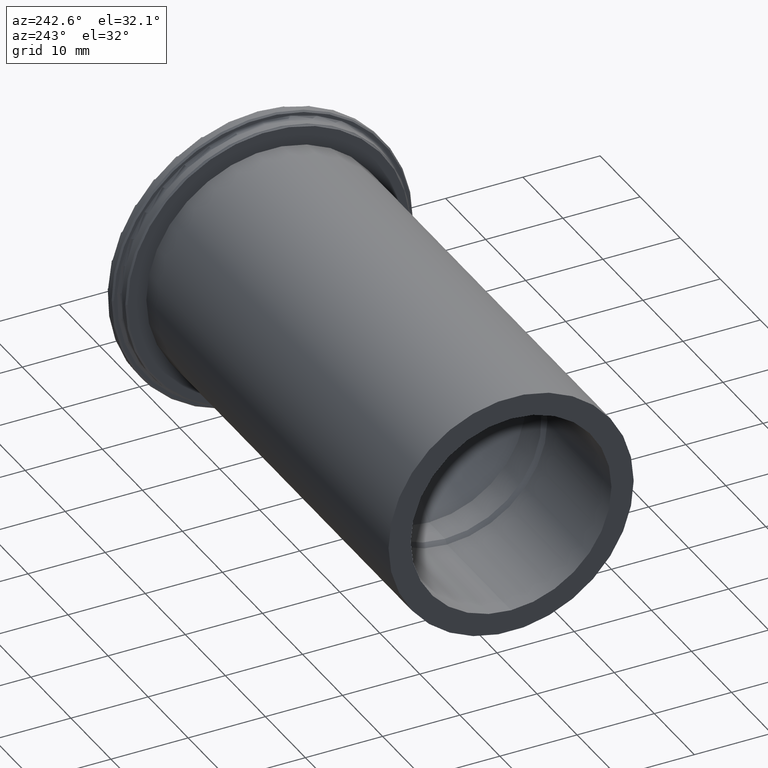
[diagram: clean part render]
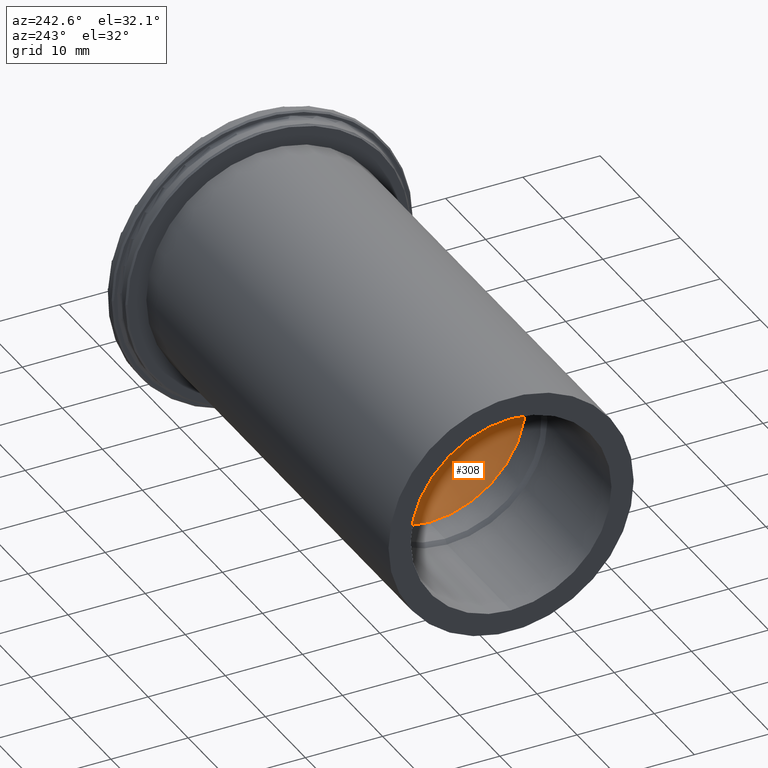
[diagram: same view with one face highlighted and labeled with its STEP entity id]
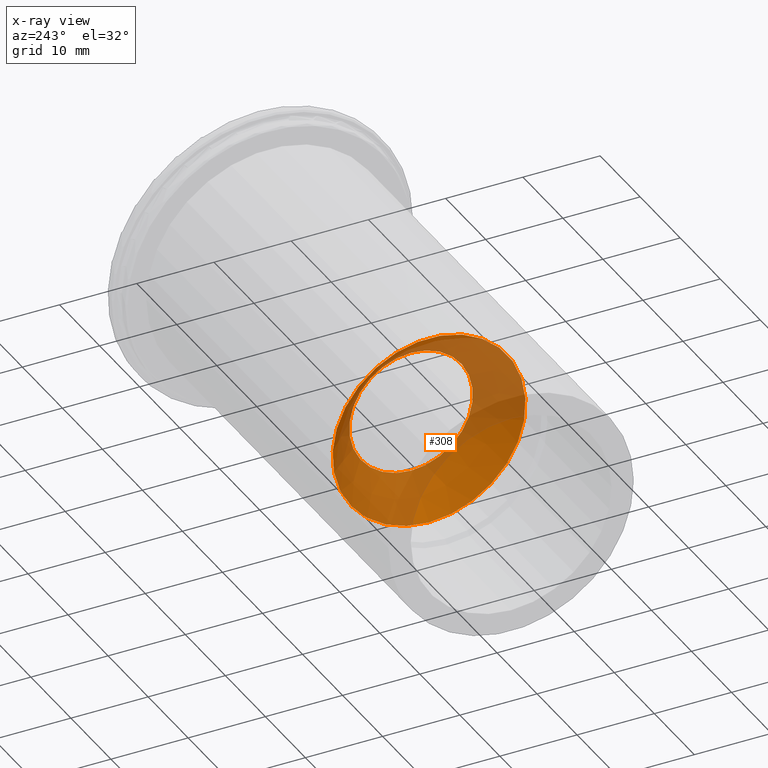
[diagram: x-ray of the same camera — body ghosted, the highlighted face saturated]
A machine part, auxiliary view. The second image highlights one B-rep face of the part: STEP entity #308.
The next image is the same camera in x-ray: the body ghosted, the highlighted face saturated — about 63% of this face is hidden behind the body in this view.
In plain terms, the highlighted conical surface has half-angle 45 deg.
Its self-contained STEP definition (entity closure, byte-faithful):
#95=CONICAL_SURFACE('',#350,6.25,0.785398163397448);
#100=FACE_OUTER_BOUND('',#116,.T.);
#116=EDGE_LOOP('',(#240,#241,#242,#243,#244));
#136=LINE('',#535,#146);
#146=VECTOR('',#416,6.25);
#156=CIRCLE('',#348,8.);
#157=CIRCLE('',#349,8.);
#158=CIRCLE('',#351,12.5);
#182=VERTEX_POINT('',#527);
#183=VERTEX_POINT('',#529);
#184=VERTEX_POINT('',#533);
#204=EDGE_CURVE('',#183,#182,#156,.T.);
#205=EDGE_CURVE('',#182,#183,#157,.T.);
#206=EDGE_CURVE('',#184,#184,#158,.T.);
#207=EDGE_CURVE('',#184,#183,#136,.T.);
#240=ORIENTED_EDGE('',*,*,#206,.T.);
#241=ORIENTED_EDGE('',*,*,#207,.T.);
#242=ORIENTED_EDGE('',*,*,#204,.T.);
#243=ORIENTED_EDGE('',*,*,#205,.T.);
#244=ORIENTED_EDGE('',*,*,#207,.F.);
#308=ADVANCED_FACE('',(#100),#95,.F.);
#348=AXIS2_PLACEMENT_3D('',#530,#408,#409);
#349=AXIS2_PLACEMENT_3D('',#531,#410,#411);
#350=AXIS2_PLACEMENT_3D('',#532,#412,#413);
#351=AXIS2_PLACEMENT_3D('',#534,#414,#415);
#408=DIRECTION('center_axis',(1.,0.,0.));
#409=DIRECTION('ref_axis',(0.,0.,-1.));
#410=DIRECTION('center_axis',(1.,0.,0.));
#411=DIRECTION('ref_axis',(0.,0.,-1.));
#412=DIRECTION('center_axis',(-1.,0.,0.));
#413=DIRECTION('ref_axis',(0.,0.,1.));
#414=DIRECTION('center_axis',(-1.,0.,0.));
#415=DIRECTION('ref_axis',(0.,0.,1.));
#416=DIRECTION('',(0.707106781186548,8.65956056235494E-17,0.707106781186547));
#527=CARTESIAN_POINT('',(-38.5,-9.79717439317883E-16,8.));
#529=CARTESIAN_POINT('',(-38.5,-9.79717439317883E-16,-8.));
#530=CARTESIAN_POINT('Origin',(-38.5,0.,0.));
#531=CARTESIAN_POINT('Origin',(-38.5,0.,0.));
#532=CARTESIAN_POINT('Origin',(-36.75,0.,0.));
#533=CARTESIAN_POINT('',(-43.,-1.53080849893419E-15,-12.5));
#534=CARTESIAN_POINT('Origin',(-43.,0.,0.));
#535=CARTESIAN_POINT('',(-36.75,-7.65404249467096E-16,-6.25));